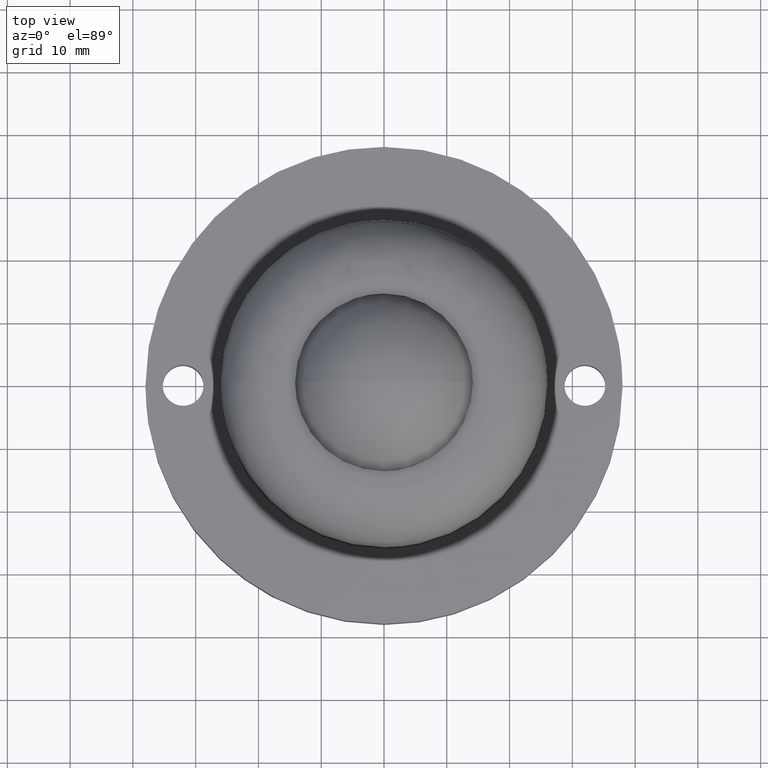
[diagram: clean part render]
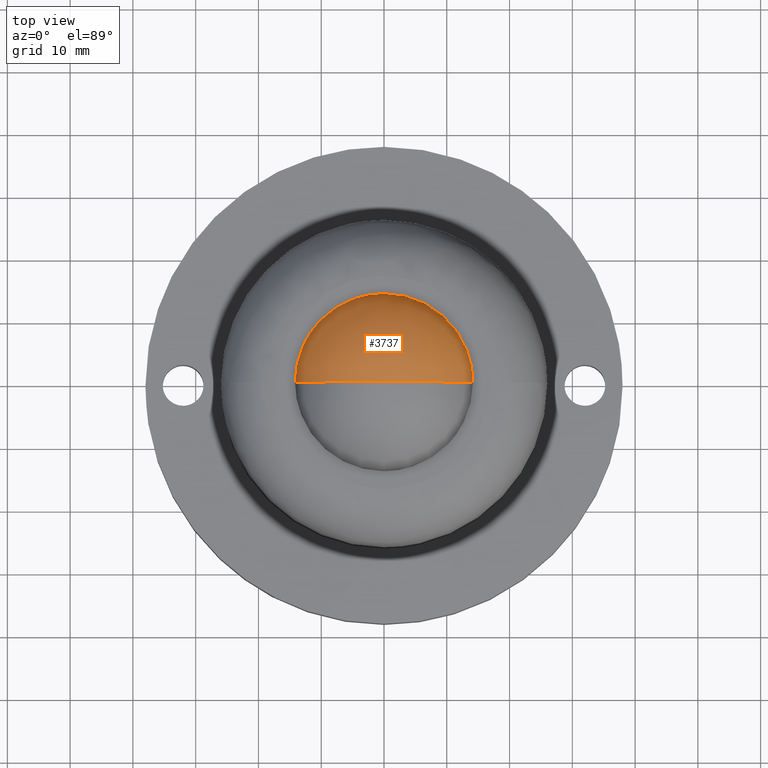
[diagram: same view with one face highlighted and labeled with its STEP entity id]
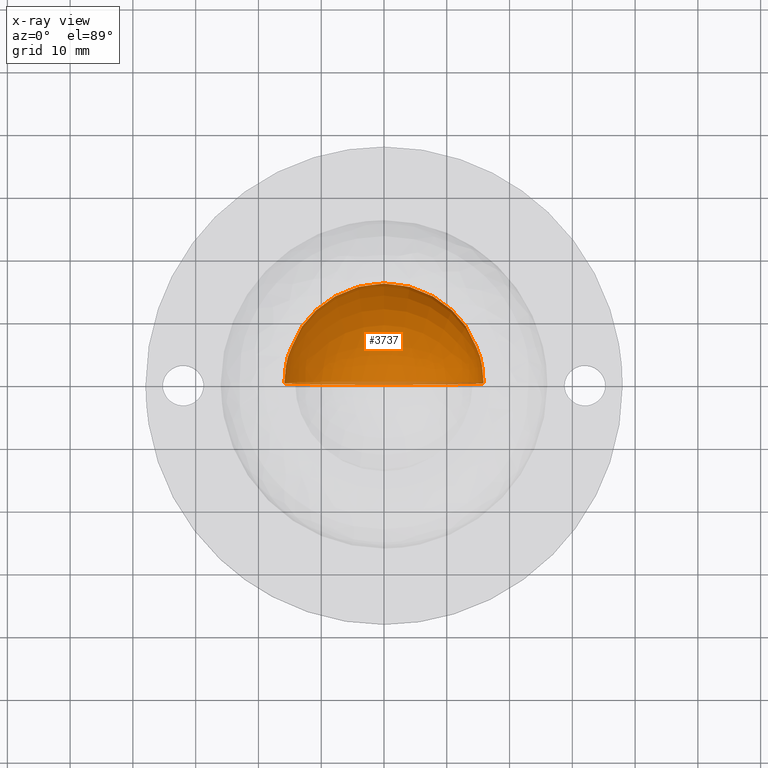
[diagram: x-ray of the same camera — body ghosted, the highlighted face saturated]
A machine part, top view. The second image highlights one B-rep face of the part: STEP entity #3737.
The next image is the same camera in x-ray: the body ghosted, the highlighted face saturated — about 3% of this face is hidden behind the body in this view.
In plain terms, the highlighted face is a freeform B-spline surface patch.
Its self-contained STEP definition (entity closure, byte-faithful):
#3610=CARTESIAN_POINT('',(-15.874999999999901,0.0,29.124999204589951));
#3611=VERTEX_POINT('',#3610);
#3612=CARTESIAN_POINT('',(7.815970E-014,0.0,13.250000000000000));
#3613=VERTEX_POINT('',#3612);
#3614=CARTESIAN_POINT('',(-15.874999999999901,0.0,29.124999204589951));
#3615=CARTESIAN_POINT('',(-15.875059778974240,0.0,28.280799269188371));
#3616=CARTESIAN_POINT('',(-15.745195910568670,0.0,26.657353821042371));
#3617=CARTESIAN_POINT('',(-15.233664199757550,0.0,24.503361375404669));
#3618=CARTESIAN_POINT('',(-14.508045441313641,0.0,22.587479639546800));
#3619=CARTESIAN_POINT('',(-13.407891051985899,0.0,20.482416973921790));
#3620=CARTESIAN_POINT('',(-11.806680907807120,0.0,18.378016646691052));
#3621=CARTESIAN_POINT('',(-9.634498518653574,0.0,16.409339120056590));
#3622=CARTESIAN_POINT('',(-7.237855976435292,0.0,14.891575515924780));
#3623=CARTESIAN_POINT('',(-4.630156005908327,0.0,13.858064791120920));
#3624=CARTESIAN_POINT('',(-2.175428707119137,0.0,13.346348334475140));
#3625=CARTESIAN_POINT('',(-0.681844019628324,0.0,13.249987139525411));
#3626=CARTESIAN_POINT('',(7.815970E-014,0.0,13.250000000000000));
#3627=B_SPLINE_CURVE_WITH_KNOTS('',3,(#3614,#3615,#3616,#3617,#3618,#3619,#3620,#3621,#3622,#3623,#3624,#3625,#3626),.UNSPECIFIED.,.F.,.U.,(4,1,1,1,1,1,1,1,1,1,4),(0.000000063378732,2.532593650044152,4.870393576652294,6.623742310390632,8.669315296952220,11.981178175131680,14.513752911764071,17.436018705612639,20.455669180675031,22.890892654935978,24.936430357524891),.UNSPECIFIED.);
#3628=EDGE_CURVE('',#3611,#3613,#3627,.T.);
#3630=CARTESIAN_POINT('',(15.875000000000060,0.0,29.124999204589930));
#3631=VERTEX_POINT('',#3630);
#3632=CARTESIAN_POINT('',(15.875000000000060,0.0,29.124999204589930));
#3633=CARTESIAN_POINT('',(15.875075189576201,0.0,28.150928410233590));
#3634=CARTESIAN_POINT('',(15.683221857129730,0.0,26.072900972002110));
#3635=CARTESIAN_POINT('',(14.894089563803830,0.0,23.412560884769910));
#3636=CARTESIAN_POINT('',(13.902986921141411,0.0,21.398093112992239));
#3637=CARTESIAN_POINT('',(12.911949224852670,0.0,19.833019430701000));
#3638=CARTESIAN_POINT('',(11.854545382654530,0.0,18.511832818445740));
#3639=CARTESIAN_POINT('',(10.443764967497570,0.0,17.118266839497601));
#3640=CARTESIAN_POINT('',(8.720433575956500,0.0,15.781759303795340));
#3641=CARTESIAN_POINT('',(6.607683489653322,0.0,14.618914194910310));
#3642=CARTESIAN_POINT('',(4.648381267372931,0.0,13.911153366720621));
#3643=CARTESIAN_POINT('',(2.500079220277873,0.0,13.393989455922220));
#3644=CARTESIAN_POINT('',(1.039030401923681,0.0,13.249844678402440));
#3645=CARTESIAN_POINT('',(7.815970E-014,0.0,13.250000000000000));
#3646=B_SPLINE_CURVE_WITH_KNOTS('',3,(#3632,#3633,#3634,#3635,#3636,#3637,#3638,#3639,#3640,#3641,#3642,#3643,#3644,#3645),.UNSPECIFIED.,.F.,.U.,(4,1,1,1,1,1,1,1,1,1,1,4),(0.000000063361128,2.922214925609094,6.234108145901590,8.279688748123970,9.643404649048541,11.786384778717061,13.344852532754921,15.585263159335790,18.312689502622419,20.553086611373100,21.819382407761879,24.936430357524880),.UNSPECIFIED.);
#3647=EDGE_CURVE('',#3631,#3613,#3646,.T.);
#3649=CARTESIAN_POINT('',(7.815970E-014,0.0,45.0));
#3650=VERTEX_POINT('',#3649);
#3651=CARTESIAN_POINT('',(7.815970E-014,0.0,45.0));
#3652=CARTESIAN_POINT('',(0.844201853436579,0.0,45.000066985926232));
#3653=CARTESIAN_POINT('',(2.240355352619446,0.0,44.888342797343213));
#3654=CARTESIAN_POINT('',(4.274768818990118,0.0,44.451136816438563));
#3655=CARTESIAN_POINT('',(6.307561640953348,0.0,43.758847091759591));
#3656=CARTESIAN_POINT('',(8.216765747869420,0.0,42.768269210442860));
#3657=CARTESIAN_POINT('',(10.046964368332381,0.0,41.470816454319397));
#3658=CARTESIAN_POINT('',(11.822236349667349,0.0,39.842047649829397));
#3659=CARTESIAN_POINT('',(13.449190849310741,0.0,37.717268383296407));
#3660=CARTESIAN_POINT('',(14.567223157008049,0.0,35.545808370491777));
#3661=CARTESIAN_POINT('',(15.329522895745169,0.0,33.435836263471877));
#3662=CARTESIAN_POINT('',(15.774490139695940,0.0,31.365374798228640));
#3663=CARTESIAN_POINT('',(15.875012996977190,0.0,29.806842354704290));
#3664=CARTESIAN_POINT('',(15.875000000000060,0.0,29.124999204589930));
#3665=B_SPLINE_CURVE_WITH_KNOTS('',3,(#3651,#3652,#3653,#3654,#3655,#3656,#3657,#3658,#3659,#3660,#3661,#3662,#3663,#3664),.UNSPECIFIED.,.F.,.U.,(4,1,1,1,1,1,1,1,1,1,1,4),(0.000000063295985,2.532593741096232,4.188540742096471,6.234108369994672,8.961548420561908,10.617492951963040,12.955254835942650,16.169699687115969,18.604915215771179,20.260858357564530,22.890893478046891,24.936431254138771),.UNSPECIFIED.);
#3666=EDGE_CURVE('',#3650,#3631,#3665,.T.);
#3668=CARTESIAN_POINT('',(7.815970E-014,0.0,45.0));
#3669=CARTESIAN_POINT('',(-0.779264183276405,0.0,45.000041312072092));
#3670=CARTESIAN_POINT('',(-2.337775853261995,0.0,44.885015932767033));
#3671=CARTESIAN_POINT('',(-4.561422592031868,0.0,44.385709299114573));
#3672=CARTESIAN_POINT('',(-6.843993838935115,0.0,43.521295908111178));
#3673=CARTESIAN_POINT('',(-8.825944581285663,0.0,42.390511049483393));
#3674=CARTESIAN_POINT('',(-10.846696951304461,0.0,40.803487022337308));
#3675=CARTESIAN_POINT('',(-12.494815350762201,0.0,39.040244643386117));
#3676=CARTESIAN_POINT('',(-14.054004232285870,0.0,36.675468224269039));
#3677=CARTESIAN_POINT('',(-15.097077043303489,0.0,34.282889960642599));
#3678=CARTESIAN_POINT('',(-15.737463693743020,0.0,31.657576658154959));
#3679=CARTESIAN_POINT('',(-15.875067602958771,0.0,30.001673603337071));
#3680=CARTESIAN_POINT('',(-15.874999999999901,0.0,29.124999204589951));
#3681=B_SPLINE_CURVE_WITH_KNOTS('',3,(#3668,#3669,#3670,#3671,#3672,#3673,#3674,#3675,#3676,#3677,#3678,#3679,#3680),.UNSPECIFIED.,.F.,.U.,(4,1,1,1,1,1,1,1,1,1,4),(0.000000063330937,2.337788974612881,4.675578474168898,6.818558765862090,9.643404995854759,11.494138851414590,14.513753433723689,16.851559561327139,19.968627579174250,22.306418011422149,24.936431254138760),.UNSPECIFIED.);
#3682=EDGE_CURVE('',#3650,#3611,#3681,.T.);
#3687=CARTESIAN_POINT('',(-10.406150290438140,-5.953124999999996,39.531150290438219));
#3688=CARTESIAN_POINT('',(-9.424437998887365,-3.893867924528306,41.690917331849931));
#3689=CARTESIAN_POINT('',(-3.964247729690672,-0.755952380952381,44.981990918763003));
#3690=CARTESIAN_POINT('',(3.964247729690829,-0.755952380952381,44.981990918763003));
#3691=CARTESIAN_POINT('',(9.424437998887521,-3.893867924528306,41.690917331849931));
#3692=CARTESIAN_POINT('',(10.406150290438299,-5.953124999999996,39.531150290438219));
#3693=CARTESIAN_POINT('',(-12.565917331849850,-3.893867924528306,38.549437998887434));
#3694=CARTESIAN_POINT('',(-11.892743189072174,-0.755952380952381,41.017743189072249));
#3695=CARTESIAN_POINT('',(-5.370916278935775,4.608870967741934,45.237748836807569));
#3696=CARTESIAN_POINT('',(5.370916278935932,4.608870967741934,45.237748836807569));
#3697=CARTESIAN_POINT('',(11.892743189072329,-0.755952380952381,41.017743189072249));
#3698=CARTESIAN_POINT('',(12.565917331850006,-3.893867924528306,38.549437998887434));
#3699=CARTESIAN_POINT('',(-15.856990918762925,-0.755952380952381,33.089247729690747));
#3700=CARTESIAN_POINT('',(-16.112748836807491,4.608870967741934,34.495916278935852));
#3701=CARTESIAN_POINT('',(-8.324920232350497,15.875000000000000,37.449920232350578));
#3702=CARTESIAN_POINT('',(8.324920232350653,15.875000000000000,37.449920232350578));
#3703=CARTESIAN_POINT('',(16.112748836807643,4.608870967741934,34.495916278935852));
#3704=CARTESIAN_POINT('',(15.856990918763080,-0.755952380952381,33.089247729690747));
#3705=CARTESIAN_POINT('',(-15.856990918762925,-0.755952380952381,25.160752270309249));
#3706=CARTESIAN_POINT('',(-16.112748836807491,4.608870967741934,23.754083721064148));
#3707=CARTESIAN_POINT('',(-8.324920232350497,15.875000000000000,20.800079767649429));
#3708=CARTESIAN_POINT('',(8.324920232350653,15.875000000000000,20.800079767649429));
#3709=CARTESIAN_POINT('',(16.112748836807643,4.608870967741934,23.754083721064148));
#3710=CARTESIAN_POINT('',(15.856990918763080,-0.755952380952381,25.160752270309249));
#3711=CARTESIAN_POINT('',(-12.565917331849850,-3.893867924528306,19.700562001112562));
#3712=CARTESIAN_POINT('',(-11.892743189072174,-0.755952380952381,17.232256810927751));
#3713=CARTESIAN_POINT('',(-5.370916278935775,4.608870967741934,13.012251163192438));
#3714=CARTESIAN_POINT('',(5.370916278935932,4.608870967741934,13.012251163192438));
#3715=CARTESIAN_POINT('',(11.892743189072329,-0.755952380952381,17.232256810927751));
#3716=CARTESIAN_POINT('',(12.565917331850006,-3.893867924528306,19.700562001112562));
#3717=CARTESIAN_POINT('',(-10.406150290438140,-5.953124999999996,18.718849709561781));
#3718=CARTESIAN_POINT('',(-9.424437998887365,-3.893867924528306,16.559082668150079));
#3719=CARTESIAN_POINT('',(-3.964247729690672,-0.755952380952381,13.268009081236999));
#3720=CARTESIAN_POINT('',(3.964247729690829,-0.755952380952381,13.268009081236999));
#3721=CARTESIAN_POINT('',(9.424437998887521,-3.893867924528306,16.559082668150079));
#3722=CARTESIAN_POINT('',(10.406150290438299,-5.953124999999996,18.718849709561781));
#3730=(BOUNDED_SURFACE()B_SPLINE_SURFACE(2,2,((#3687,#3693,#3699,#3705,#3711,#3717),(#3688,#3694,#3700,#3706,#3712,#3718),(#3689,#3695,#3701,#3707,#3713,#3719),(#3690,#3696,#3702,#3708,#3714,#3720),(#3691,#3697,#3703,#3709,#3715,#3721),(#3692,#3698,#3704,#3710,#3716,#3722)),.UNSPECIFIED.,.F.,.F.,.U.)B_SPLINE_SURFACE_WITH_KNOTS((3,1,1,1,3),(3,1,1,1,3),(0.0,14.637222386550460,29.274444773100932,43.911667159651387,58.548889546201863),(0.0,14.637222386550469,29.274444773100939,43.911667159651408,58.548889546201877),.UNSPECIFIED.)GEOMETRIC_REPRESENTATION_ITEM()RATIONAL_B_SPLINE_SURFACE(((3.200000000000000,2.650000000000000,2.100000000000000,2.100000000000000,2.650000000000000,3.200000000000000),(2.650000000000000,2.100000000000000,1.550000000000000,1.550000000000000,2.100000000000000,2.650000000000000),(2.100000000000000,1.550000000000000,1.0,1.0,1.550000000000000,2.100000000000000),(2.100000000000000,1.550000000000000,1.0,1.0,1.550000000000000,2.100000000000000),(2.650000000000000,2.100000000000000,1.550000000000000,1.550000000000000,2.100000000000000,2.650000000000000),(3.200000000000000,2.650000000000000,2.100000000000000,2.100000000000000,2.650000000000000,3.200000000000000)))REPRESENTATION_ITEM('')SURFACE());
#3731=ORIENTED_EDGE('',*,*,#3647,.T.);
#3732=ORIENTED_EDGE('',*,*,#3628,.F.);
#3733=ORIENTED_EDGE('',*,*,#3682,.F.);
#3734=ORIENTED_EDGE('',*,*,#3666,.T.);
#3735=EDGE_LOOP('',(#3731,#3732,#3733,#3734));
#3736=FACE_OUTER_BOUND('',#3735,.T.);
#3737=ADVANCED_FACE('',(#3736),#3730,.T.);